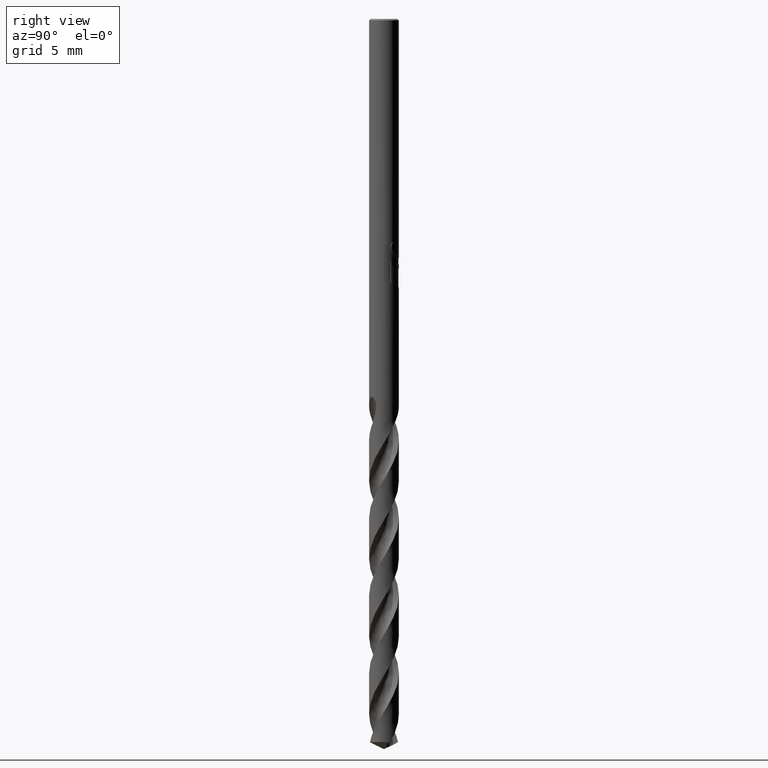
[diagram: clean part render]
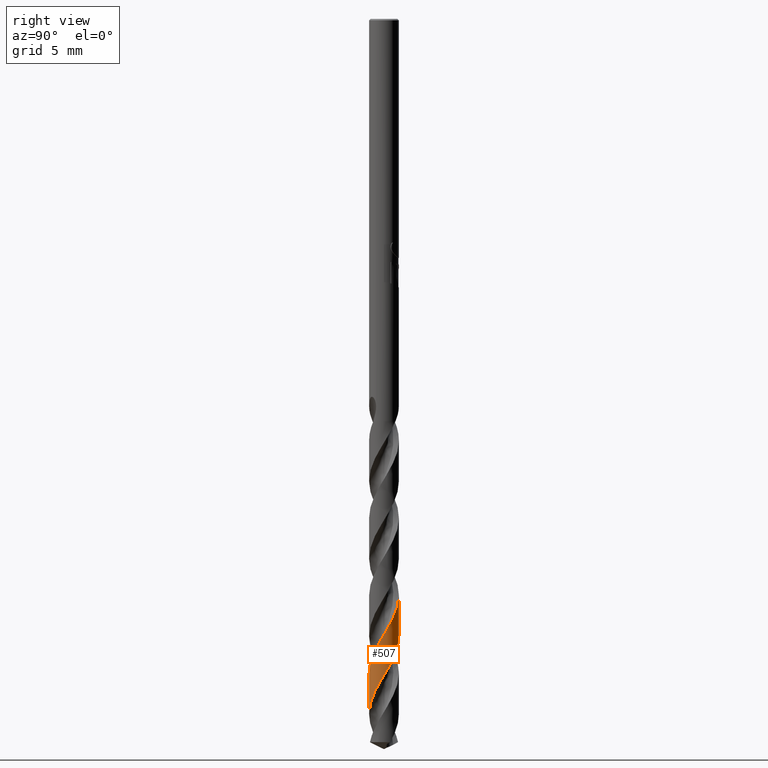
[diagram: same view with one face highlighted and labeled with its STEP entity id]
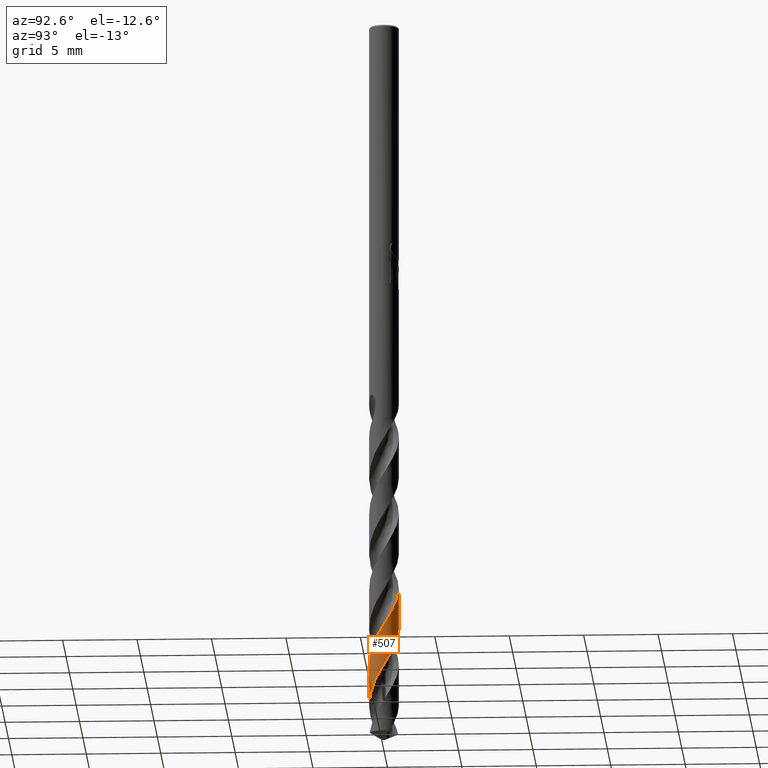
[diagram: same view with one face highlighted and labeled with its STEP entity id]
A machine part, right view. The second image highlights one B-rep face of the part: STEP entity #507.
A second angle (auxiliary view) of the same face is appended — the face is thin or edge-on in the first view.
In plain terms, the highlighted conical surface has half-angle 0 deg.
Its self-contained STEP definition (entity closure, byte-faithful):
#295=EDGE_CURVE('',#713,#465,#826,.T.);
#363=VERTEX_POINT('',#898);
#465=VERTEX_POINT('',#1011);
#471=VERTEX_POINT('',#1017);
#489=EDGE_CURVE('',#363,#465,#1036,.T.);
#507=ADVANCED_FACE('',(#1055),#1056,.T.);
#553=EDGE_CURVE('',#363,#471,#1105,.T.);
#643=EDGE_CURVE('',#713,#471,#1206,.T.);
#713=VERTEX_POINT('',#1283);
#826=B_SPLINE_CURVE_WITH_KNOTS('',3,(#1416,#1417,#1418,#1419,#1420,#1421,#1422,#1423,#1424,#1425,#1426,#1427,#1428,#1429,#1430,#1431,#1432,#1433,#1434,#1435,#1436,#1437,#1438,#1439,#1440,#1441,#1442,#1443,#1444,#1445,#1446,#1447,#1448,#1449,#1450,#1451,#1452,#1453,#1454,#1455,#1456,#1457,#1458,#1459,#1460,#1461,#1462,#1463,#1464,#1465,#1466,#1467,#1468,#1469,#1470,#1471,#1472,#1473,#1474,#1475,#1476,#1477,#1478,#1479,#1480,#1481,#1482,#1483,#1484,#1485,#1486,#1487,#1488,#1489,#1490,#1491,#1492,#1493,#1494,#1495,#1496,#1497,#1498,#1499,#1500,#1501,#1502,#1503,#1504,#1505,#1506,#1507,#1508,#1509,#1510,#1511,#1512,#1513,#1514,#1515,#1516,#1517,#1518,#1519,#1520,#1521,#1522,#1523,#1524,#1525,#1526,#1527,#1528,#1529,#1530,#1531,#1532,#1533,#1534,#1535,#1536,#1537,#1538,#1539,#1540,#1541,#1542,#1543,#1544,#1545,#1546,#1547,#1548,#1549,#1550,#1551,#1552,#1553,#1554,#1555,#1556,#1557,#1558,#1559,#1560,#1561,#1562,#1563,#1564,#1565,#1566,#1567,#1568,#1569,#1570,#1571),.UNSPECIFIED.,.F.,.F.,(4,2,2,2,2,2,2,2,2,2,2,2,2,2,2,2,2,2,2,2,2,2,2,2,2,2,2,2,2,2,2,2,2,2,2,2,2,2,2,2,2,2,2,2,2,2,2,2,2,2,2,2,2,2,2,2,2,2,2,2,2,2,2,2,2,2,2,2,2,2,2,2,2,2,2,2,2,4),(0.0,0.361337162358657,0.976261301621394,1.1645096475095,1.54466752896637,1.72683408805713,1.94261804372668,2.59464719311884,2.77800775885232,3.47848981626131,3.51889130918199,4.09321758788143,4.65649379795395,5.02119557355428,5.21316606392444,5.90264294125696,5.98616322421433,6.59712063751156,6.98105238734339,7.36536256074681,7.90099211863067,8.26598522135788,8.46778794251694,9.14374290249411,9.31837405770769,9.69555886869134,9.87951475530008,10.0951139882441,10.7567282586366,10.9417833560269,11.6539840578492,11.694043364667,12.2812229967223,12.8098363752709,13.1756980627008,13.3809288936328,14.0550600290681,14.232584705448,14.6065292866452,14.7912206606843,15.2284485195944,15.5930271560503,16.0537777552777,16.4185911929046,16.8038263729443,17.1896424429348,17.7217319258021,18.0880073056388,18.2924416436777,18.9683605631994,19.145295027987,19.5207611774961,19.7055696072614,20.1399856433091,20.5047983603629,20.9671628580473,21.3322117437013,21.7177093934577,22.1039861761332,22.641968007781,23.0088669988028,23.1999366720272,23.8193502846993,24.5415216084175,24.6657885651853,24.7300132143325,24.8717420236343,24.9503218814963,25.0588069124113,25.1229035095798,25.2113482762209,25.2584899909506,25.2883743723789,25.3162244973386,25.3531629405279,25.4344274627189,25.5458477865428,25.7616026485399),.UNSPECIFIED.);
#898=CARTESIAN_POINT('',(-5.19086669309657E-014,0.999954290792755,-38.6908122819593));
#1011=CARTESIAN_POINT('',(-1.1791142652487E-013,0.999967028578084,-41.4337277855305));
#1017=CARTESIAN_POINT('',(-9.14096433639484E-013,-0.9999784624389,-43.8958601966644));
#1036=LINE('',#3259,#3260);
#1055=FACE_OUTER_BOUND('',#3461,.T.);
#1056=CONICAL_SURFACE('',#3462,0.99995,4.64388542437503E-006);
#1105=B_SPLINE_CURVE_WITH_KNOTS('',3,(#3895,#3896,#3897,#3898,#3899,#3900,#3901,#3902,#3903,#3904,#3905,#3906,#3907,#3908,#3909,#3910,#3911,#3912,#3913,#3914,#3915,#3916,#3917,#3918,#3919,#3920,#3921,#3922,#3923,#3924,#3925,#3926,#3927,#3928,#3929,#3930,#3931,#3932,#3933,#3934,#3935,#3936,#3937,#3938,#3939,#3940,#3941,#3942,#3943,#3944,#3945,#3946,#3947,#3948,#3949,#3950,#3951,#3952,#3953,#3954,#3955,#3956,#3957,#3958,#3959,#3960,#3961,#3962,#3963,#3964,#3965,#3966,#3967,#3968,#3969,#3970,#3971,#3972,#3973,#3974,#3975,#3976,#3977,#3978,#3979,#3980,#3981,#3982,#3983,#3984,#3985,#3986,#3987,#3988,#3989,#3990,#3991,#3992,#3993,#3994,#3995,#3996,#3997,#3998,#3999,#4000,#4001,#4002,#4003,#4004,#4005,#4006,#4007,#4008,#4009,#4010,#4011,#4012,#4013,#4014,#4015,#4016,#4017,#4018,#4019,#4020,#4021,#4022,#4023,#4024,#4025,#4026,#4027,#4028,#4029,#4030,#4031,#4032,#4033,#4034,#4035,#4036,#4037,#4038,#4039,#4040,#4041,#4042,#4043,#4044,#4045,#4046,#4047,#4048,#4049,#4050,#4051,#4052,#4053,#4054,#4055,#4056,#4057,#4058,#4059,#4060,#4061,#4062,#4063,#4064,#4065,#4066,#4067,#4068,#4069,#4070,#4071,#4072,#4073,#4074,#4075,#4076),.UNSPECIFIED.,.F.,.F.,(4,2,2,2,2,2,2,2,2,2,2,2,2,2,2,2,2,2,2,2,2,2,2,2,2,2,2,2,2,2,2,2,2,2,2,2,2,2,2,2,2,2,2,2,2,2,2,2,2,2,2,2,2,2,2,2,2,2,2,2,2,2,2,2,2,2,2,2,2,2,2,2,2,2,2,2,2,2,2,2,2,2,2,2,2,2,2,2,2,2,4),(0.0,0.0713269601822127,0.0905710913789112,0.0994977567022842,0.105323863480744,0.10992141985153,0.113515126624189,0.116301397821268,0.118447032378656,0.120090198449797,0.121342985911201,0.122294792237779,0.123015947872496,0.12356118717431,0.248367748423359,0.27722928704317,0.292909812271049,0.306007461511428,0.321452030510873,0.349238094609262,0.383452344483724,0.427609210569007,0.570896598186937,0.636245978587268,0.684173771716098,0.735697710154707,0.789259494164526,0.811316800939864,0.984961028716066,1.13279175476137,1.28159717145805,1.68902679389984,2.31796160691511,2.41841238240108,2.79799332536576,2.9763470545205,3.2820909948577,3.76082652555422,4.06333959082316,4.51107960277442,4.85806224113688,5.34036504762714,5.62992890547369,6.13535030870713,6.41350692303129,6.91766351614137,7.19755605763748,7.70171880281721,7.9814140141979,8.48556390813268,8.76510134448463,9.26918137741888,9.54864164010171,10.0526352035573,10.3320415988141,10.8359452820761,11.1153003258685,11.6191075292949,11.898417503104,12.4021200909869,12.6813956541399,13.1850006087263,13.4642234104549,13.9676549379776,14.2469347398654,14.7502452424129,15.029523823625,15.5328655679991,15.8119216956194,16.3151739789274,16.5941809266085,17.0973485749243,17.3762987537729,17.8793746170397,18.1582773081044,18.6612626837962,18.9401068149223,19.4429466890467,19.7218247891687,20.2247395463734,20.50331248198,21.0054117101805,21.2848543733916,21.788720857051,22.0662831426163,22.566334277962,22.8452053675709,23.3462650317881,23.6403257376772,24.0780180768206,24.5261449386775),.UNSPECIFIED.);
#1206=LINE('',#6519,#6520);
#1283=CARTESIAN_POINT('',(-1.26615241493044E-013,-0.99999119822854,-46.6383459545789));
#1416=CARTESIAN_POINT('',(-0.909974226507982,-0.414664812940762,-48.533692341845));
#1417=CARTESIAN_POINT('',(-0.884089494360212,-0.471467223037623,-48.4306843882466));
#1418=CARTESIAN_POINT('',(-0.853053246550379,-0.5254623628058,-48.3268818714906));
#1419=CARTESIAN_POINT('',(-0.756972308534248,-0.661838188784405,-48.0490514679632));
#1420=CARTESIAN_POINT('',(-0.683280620848956,-0.737696812678099,-47.8775501043395));
#1421=CARTESIAN_POINT('',(-0.573214396989906,-0.820033516434332,-47.6493926017337));
#1422=CARTESIAN_POINT('',(-0.546546819828016,-0.838042470181231,-47.5957418752028));
#1423=CARTESIAN_POINT('',(-0.463421864928407,-0.888515803250211,-47.4342683069033));
#1424=CARTESIAN_POINT('',(-0.404571039337679,-0.916827937610988,-47.3270545420463));
#1425=CARTESIAN_POINT('',(-0.313866438639934,-0.949975737600897,-47.1675850046423));
#1426=CARTESIAN_POINT('',(-0.284035193109547,-0.95931443188844,-47.1159879301751));
#1427=CARTESIAN_POINT('',(-0.218113610382269,-0.976615566688474,-47.003018920271));
#1428=CARTESIAN_POINT('',(-0.181961647464725,-0.983985421889499,-46.9415125625582));
#1429=CARTESIAN_POINT('',(-0.0356541784820713,-1.00551352499264,-46.6955355879634));
#1430=CARTESIAN_POINT('',(0.0761688677630122,-1.00326049694875,-46.5146005183879));
#1431=CARTESIAN_POINT('',(0.216094545636904,-0.976861825164926,-46.2781262547534));
#1432=CARTESIAN_POINT('',(0.246452994269482,-0.969646611257163,-46.2260504876048));
#1433=CARTESIAN_POINT('',(0.391102968784261,-0.928032876684451,-45.9759093132332));
#1434=CARTESIAN_POINT('',(0.498726596206732,-0.874871702733071,-45.782369608925));
#1435=CARTESIAN_POINT('',(0.59991691746471,-0.800074544694021,-45.5727158967988));
#1436=CARTESIAN_POINT('',(0.605380910974261,-0.795948122664054,-45.561291935907));
#1437=CARTESIAN_POINT('',(0.688031218673725,-0.732185311150112,-45.3873430473485));
#1438=CARTESIAN_POINT('',(0.756271528086975,-0.661531242472111,-45.2274402738185));
#1439=CARTESIAN_POINT('',(0.869197679787193,-0.503683165274066,-44.9064543041072));
#1440=CARTESIAN_POINT('',(0.913550659225301,-0.417900734806901,-44.7467120030092));
#1441=CARTESIAN_POINT('',(0.965366831852584,-0.268155554414006,-44.4849566820731));
#1442=CARTESIAN_POINT('',(0.98015337382443,-0.207633225506715,-44.3827217476146));
#1443=CARTESIAN_POINT('',(0.994005104693142,-0.113933199382353,-44.2255084776699));
#1444=CARTESIAN_POINT('',(0.997187222324139,-0.0814830941769232,-44.1711011143368));
#1445=CARTESIAN_POINT('',(1.00450869783816,0.0679956198552639,-43.922331657348));
#1446=CARTESIAN_POINT('',(0.989663446758689,0.184864599788884,-43.7322128759632));
#1447=CARTESIAN_POINT('',(0.950825079205069,0.309976442602454,-43.5141555187165));
#1448=CARTESIAN_POINT('',(0.946351803621298,0.323375515702617,-43.4905802861585));
#1449=CARTESIAN_POINT('',(0.906726658262533,0.434184508767475,-43.2946526884808));
#1450=CARTESIAN_POINT('',(0.856914599379851,0.52576262900332,-43.1254171697304));
#1451=CARTESIAN_POINT('',(0.754088863975616,0.659965038421645,-42.8453690712443));
#1452=CARTESIAN_POINT('',(0.709478321392534,0.707706429734855,-42.7366318765135));
#1453=CARTESIAN_POINT('',(0.611396373505677,0.793982840111235,-42.5203647891639));
#1454=CARTESIAN_POINT('',(0.558214828567696,0.832233506585758,-42.4129759803181));
#1455=CARTESIAN_POINT('',(0.422851393861861,0.910735043758517,-42.15410464317));
#1456=CARTESIAN_POINT('',(0.338182390424449,0.945457447484262,-42.0025562844681));
#1457=CARTESIAN_POINT('',(0.189697556549716,0.983775450329625,-41.7491842458098));
#1458=CARTESIAN_POINT('',(0.128290174179347,0.993638490471973,-41.6471408016226));
#1459=CARTESIAN_POINT('',(0.0322763138835504,1.00003329380327,-41.4875286309329));
#1460=CARTESIAN_POINT('',(-0.0019180229224435,1.00054777125513,-41.4304854922018));
#1461=CARTESIAN_POINT('',(-0.150313343095689,0.995195521305252,-41.1835823326537));
#1462=CARTESIAN_POINT('',(-0.262945065152687,0.971516328129952,-40.9976270627382));
#1463=CARTESIAN_POINT('',(-0.396562193569361,0.918442968847741,-40.7585776527126));
#1464=CARTESIAN_POINT('',(-0.423473680738477,0.906351276703757,-40.709350708003));
#1465=CARTESIAN_POINT('',(-0.506962346957572,0.864290634438687,-40.5540721296454));
#1466=CARTESIAN_POINT('',(-0.56124810241579,0.830085312730178,-40.4486997747847));
#1467=CARTESIAN_POINT('',(-0.636732074316689,0.771670119471134,-40.2910843131484));
#1468=CARTESIAN_POINT('',(-0.66053174482446,0.751395074572301,-40.2394798890162));
#1469=CARTESIAN_POINT('',(-0.710016520614799,0.705078765197815,-40.1271400833789));
#1470=CARTESIAN_POINT('',(-0.735262864017441,0.678700348834376,-40.0662783655073));
#1471=CARTESIAN_POINT('',(-0.831667175281278,0.566321151657197,-39.8200121808063));
#1472=CARTESIAN_POINT('',(-0.889648290230411,0.470017677512381,-39.6381805140247));
#1473=CARTESIAN_POINT('',(-0.941971470641278,0.337017442002326,-39.4007871669843));
#1474=CARTESIAN_POINT('',(-0.952019078489436,0.307488508347603,-39.3487297692421));
#1475=CARTESIAN_POINT('',(-0.994027348696815,0.162051149560672,-39.0971634203455));
#1476=CARTESIAN_POINT('',(-1.00623952565904,0.0417626257180703,-38.9022938855646));
#1477=CARTESIAN_POINT('',(-0.996409610182816,-0.0843912458509947,-38.6913778644815));
#1478=CARTESIAN_POINT('',(-0.995818685039087,-0.091101016543467,-38.6801415563199));
#1479=CARTESIAN_POINT('',(-0.985454535564884,-0.196516204404306,-38.5036725219247));
#1480=CARTESIAN_POINT('',(-0.961121027592901,-0.293371716782488,-38.3412224844282));
#1481=CARTESIAN_POINT('',(-0.888217753903201,-0.467982500777985,-38.0281511875116));
#1482=CARTESIAN_POINT('',(-0.84272991503922,-0.545674357346883,-37.8790091671778));
#1483=CARTESIAN_POINT('',(-0.749133377083764,-0.665248495975374,-37.6280934853218));
#1484=CARTESIAN_POINT('',(-0.706427317406581,-0.710418671298318,-37.5261038109));
#1485=CARTESIAN_POINT('',(-0.633784810857772,-0.774222386647588,-37.3657573314648));
#1486=CARTESIAN_POINT('',(-0.606567894031954,-0.795719154172411,-37.3079132798567));
#1487=CARTESIAN_POINT('',(-0.485591775004463,-0.881486393881533,-37.0613155304993));
#1488=CARTESIAN_POINT('',(-0.382387366515763,-0.930902721754408,-36.8763840750045));
#1489=CARTESIAN_POINT('',(-0.244310172216518,-0.9701016474479,-36.6377889812214));
#1490=CARTESIAN_POINT('',(-0.215214947164651,-0.976969530714055,-36.5879017481304));
#1491=CARTESIAN_POINT('',(-0.123751805471204,-0.994262082844514,-36.4332690289604));
#1492=CARTESIAN_POINT('',(-0.0606429642574732,-1.00011310827695,-36.3291535039778));
#1493=CARTESIAN_POINT('',(0.0340415446166339,-0.999853141660648,-36.1728021526473));
#1494=CARTESIAN_POINT('',(0.0652842376031171,-0.998297367351126,-36.1211778476856));
#1495=CARTESIAN_POINT('',(0.169937174158305,-0.988164138194265,-35.9469524643148));
#1496=CARTESIAN_POINT('',(0.242546605448699,-0.972903998553887,-35.823714567234));
#1497=CARTESIAN_POINT('',(0.371588800137908,-0.930386021946614,-35.5990662773437));
#1498=CARTESIAN_POINT('',(0.428310246497237,-0.905668578097961,-35.4975645730591));
#1499=CARTESIAN_POINT('',(0.55065100378552,-0.838295625638583,-35.2662478670722));
#1500=CARTESIAN_POINT('',(0.614338436190825,-0.792820929861863,-35.1363323812743));
#1501=CARTESIAN_POINT('',(0.717955600889284,-0.698740368882163,-34.9049531974434));
#1502=CARTESIAN_POINT('',(0.75975338006966,-0.653038958719335,-34.8033522467627));
#1503=CARTESIAN_POINT('',(0.836412029904582,-0.551848564696165,-34.5930436194253));
#1504=CARTESIAN_POINT('',(0.870584687572577,-0.496195101830584,-34.4843591660356));
#1505=CARTESIAN_POINT('',(0.927728418691984,-0.37875863093779,-34.268140753157));
#1506=CARTESIAN_POINT('',(0.950494552939616,-0.317332017733465,-34.1607474930513));
#1507=CARTESIAN_POINT('',(0.990014974945331,-0.166918154817188,-33.9034385860591));
#1508=CARTESIAN_POINT('',(1.00103465476834,-0.0770492277572054,-33.7534595355959));
#1509=CARTESIAN_POINT('',(0.999023870270235,0.0753053084234947,-33.5016879901632));
#1510=CARTESIAN_POINT('',(0.992417957471425,0.137126141328575,-33.3996779674742));
#1511=CARTESIAN_POINT('',(0.973318748104039,0.231741361040497,-33.2395847311975));
#1512=CARTESIAN_POINT('',(0.964742297743481,0.265172015035181,-33.1820187308686));
#1513=CARTESIAN_POINT('',(0.920527697644175,0.406760258847377,-32.9353595996321));
#1514=CARTESIAN_POINT('',(0.868293781204939,0.508794021218994,-32.7501144051168));
#1515=CARTESIAN_POINT('',(0.782149416592366,0.623683409304344,-32.5113862250798));
#1516=CARTESIAN_POINT('',(0.763246052449815,0.646681400824103,-32.461707802927));
#1517=CARTESIAN_POINT('',(0.70092035649947,0.71594038065581,-32.3069273841614));
#1518=CARTESIAN_POINT('',(0.654102350777021,0.758974455471211,-32.2024696233741));
#1519=CARTESIAN_POINT('',(0.578435211981594,0.816234811967242,-32.0457728596581));
#1520=CARTESIAN_POINT('',(0.552635336798773,0.833915582059347,-31.9941527690303));
#1521=CARTESIAN_POINT('',(0.463679783375718,0.888949422608264,-31.820804739972));
#1522=CARTESIAN_POINT('',(0.397166733818098,0.920604751240188,-31.698445101458));
#1523=CARTESIAN_POINT('',(0.269307362059248,0.964951295208073,-31.4746715179479));
#1524=CARTESIAN_POINT('',(0.209229575785357,0.979729280707154,-31.3731736292278));
#1525=CARTESIAN_POINT('',(0.0708949913308721,1.00046276837989,-31.1414988366967));
#1526=CARTESIAN_POINT('',(-0.00754242744331818,1.00295361086464,-31.0112165517706));
#1527=CARTESIAN_POINT('',(-0.14720133191554,0.990954840706106,-30.7794806896672));
#1528=CARTESIAN_POINT('',(-0.20814755439098,0.97995968837337,-30.6778863019821));
#1529=CARTESIAN_POINT('',(-0.330460635416594,0.945980585593098,-30.4675842358357));
#1530=CARTESIAN_POINT('',(-0.391378056850915,0.922448604493877,-30.3589052403046));
#1531=CARTESIAN_POINT('',(-0.508048233223562,0.863707369814777,-30.142633912689));
#1532=CARTESIAN_POINT('',(-0.563421477239389,0.828650147519799,-30.0351809566029));
#1533=CARTESIAN_POINT('',(-0.686801009618704,0.732410821980903,-29.7762694995365));
#1534=CARTESIAN_POINT('',(-0.750634189104934,0.666850911084699,-29.6247674977484));
#1535=CARTESIAN_POINT('',(-0.841675072395474,0.543390879145454,-29.371364589176));
#1536=CARTESIAN_POINT('',(-0.873774660461731,0.490082137951003,-29.2692702028471));
#1537=CARTESIAN_POINT('',(-0.914709351903545,0.405176838123625,-29.1128305053925));
#1538=CARTESIAN_POINT('',(-0.92727307770855,0.37552104821578,-29.0590654140442));
#1539=CARTESIAN_POINT('',(-0.974345452001558,0.2476220364794,-28.8321791835525));
#1540=CARTESIAN_POINT('',(-0.994892591497707,0.144703818072419,-28.6617680707106));
#1541=CARTESIAN_POINT('',(-1.00400058305705,-0.0816020384524423,-28.2871781979354));
#1542=CARTESIAN_POINT('',(-0.986590602964498,-0.20261445153681,-28.0848935015039));
#1543=CARTESIAN_POINT('',(-0.941654851860513,-0.336936878480087,-27.8513713241063));
#1544=CARTESIAN_POINT('',(-0.934412372263023,-0.356542112220509,-27.8171488407607));
#1545=CARTESIAN_POINT('',(-0.922431805849097,-0.386062844726671,-27.7653395678861));
#1546=CARTESIAN_POINT('',(-0.918174927268412,-0.39608196081232,-27.7477060740928));
#1547=CARTESIAN_POINT('',(-0.903959017308353,-0.42807105252933,-27.6912176360702));
#1548=CARTESIAN_POINT('',(-0.893327313639787,-0.449869652386093,-27.6525117675703));
#1549=CARTESIAN_POINT('',(-0.87521288197172,-0.48373082391951,-27.5894653668133));
#1550=CARTESIAN_POINT('',(-0.868567283795685,-0.495556641140063,-27.566935292918));
#1551=CARTESIAN_POINT('',(-0.852357893855553,-0.523100679016867,-27.5130161621714));
#1552=CARTESIAN_POINT('',(-0.842686168340275,-0.538519508640531,-27.4816513908905));
#1553=CARTESIAN_POINT('',(-0.826966870860781,-0.562175313037332,-27.4312774978888));
#1554=CARTESIAN_POINT('',(-0.821070571816779,-0.570747095249993,-27.4125115282114));
#1555=CARTESIAN_POINT('',(-0.806927101087802,-0.590654342603964,-27.367605201935));
#1556=CARTESIAN_POINT('',(-0.801911747605736,-0.597365529389791,-27.351321799304));
#1557=CARTESIAN_POINT('',(-0.792410103775587,-0.609851614143045,-27.3223439560268));
#1558=CARTESIAN_POINT('',(-0.789015447294891,-0.614238901624279,-27.3123266785751));
#1559=CARTESIAN_POINT('',(-0.783305975056827,-0.621487993163979,-27.2960393098835));
#1560=CARTESIAN_POINT('',(-0.781052073801483,-0.624318622146491,-27.2897436183616));
#1561=CARTESIAN_POINT('',(-0.776619038716571,-0.629823054589252,-27.277622500174));
#1562=CARTESIAN_POINT('',(-0.774446026363646,-0.632493461976556,-27.2717963348988));
#1563=CARTESIAN_POINT('',(-0.769306979051808,-0.638741304579349,-27.2582881492314));
#1564=CARTESIAN_POINT('',(-0.766314999387595,-0.642328619181251,-27.2506247109929));
#1565=CARTESIAN_POINT('',(-0.756531986046686,-0.653888262933989,-27.2262144259445));
#1566=CARTESIAN_POINT('',(-0.749502796111536,-0.661942765736333,-27.209633193453));
#1567=CARTESIAN_POINT('',(-0.732044502033959,-0.681277741092509,-27.1707254359339));
#1568=CARTESIAN_POINT('',(-0.721359240832737,-0.692604976345974,-27.1486338741101));
#1569=CARTESIAN_POINT('',(-0.688058046818913,-0.726188438823162,-27.0847372025221));
#1570=CARTESIAN_POINT('',(-0.663882453575266,-0.748505435626131,-27.0443129684901));
#1571=CARTESIAN_POINT('',(-0.637187381168949,-0.770579196262958,-27.005));
#3259=CARTESIAN_POINT('',(-1.22502836488539E-016,0.99995,-37.7668461709225));
#3260=VECTOR('',#8483,1.0);
#3461=EDGE_LOOP('',(#8503,#8504,#8505,#8506));
#3462=AXIS2_PLACEMENT_3D('',#8507,#8508,#8509);
#3895=CARTESIAN_POINT('',(-0.695006638995518,0.718864262699409,-27.005));
#3896=CARTESIAN_POINT('',(-0.686613854031782,0.726978642211784,-27.0257123079351));
#3897=CARTESIAN_POINT('',(-0.678037696746207,0.73498708125927,-27.0464267940001));
#3898=CARTESIAN_POINT('',(-0.666847238347545,0.745067572051551,-27.0727072524688));
#3899=CARTESIAN_POINT('',(-0.664454498966895,0.747202313371971,-27.0782851909026));
#3900=CARTESIAN_POINT('',(-0.660926713036044,0.750319210699369,-27.0864464123365));
#3901=CARTESIAN_POINT('',(-0.659805405556728,0.751305463424192,-27.0890313064955));
#3902=CARTESIAN_POINT('',(-0.657946222952313,0.752933328087588,-27.0933018718946));
#3903=CARTESIAN_POINT('',(-0.657210507280632,0.753575607785352,-27.0949878853718));
#3904=CARTESIAN_POINT('',(-0.655891432775723,0.754723753106848,-27.0980036738813));
#3905=CARTESIAN_POINT('',(-0.655308688865532,0.755229800294122,-27.0993335344784));
#3906=CARTESIAN_POINT('',(-0.654268710072788,0.756130791558494,-27.1017024291736));
#3907=CARTESIAN_POINT('',(-0.653811866534987,0.75652585711372,-27.1027415324003));
#3908=CARTESIAN_POINT('',(-0.652999769059385,0.757226850017007,-27.1045859836095));
#3909=CARTESIAN_POINT('',(-0.652644758463358,0.757532855954999,-27.1053913818236));
#3910=CARTESIAN_POINT('',(-0.652015731354584,0.758074282923513,-27.1068168183608));
#3911=CARTESIAN_POINT('',(-0.65174186315821,0.758309753390441,-27.1074368908277));
#3912=CARTESIAN_POINT('',(-0.651257887672297,0.758725416876825,-27.1085317188436));
#3913=CARTESIAN_POINT('',(-0.651047869359346,0.758905640217005,-27.1090064963758));
#3914=CARTESIAN_POINT('',(-0.650677509332255,0.759223190825042,-27.1098431914496));
#3915=CARTESIAN_POINT('',(-0.650517220217732,0.759360536392561,-27.1102051228111));
#3916=CARTESIAN_POINT('',(-0.650235024247687,0.759602184266276,-27.1108419944176));
#3917=CARTESIAN_POINT('',(-0.650113148210572,0.759706497399814,-27.1111169429942));
#3918=CARTESIAN_POINT('',(-0.64989885703623,0.759889818864666,-27.1116001902578));
#3919=CARTESIAN_POINT('',(-0.649806459785677,0.759968833540234,-27.1118084939109));
#3920=CARTESIAN_POINT('',(-0.649644162357227,0.760107572986221,-27.11217427575));
#3921=CARTESIAN_POINT('',(-0.649574272371735,0.760167301542056,-27.1123317571237));
#3922=CARTESIAN_POINT('',(-0.633503256422959,0.77389788837477,-27.1485361515204));
#3923=CARTESIAN_POINT('',(-0.617024903941267,0.787115942827001,-27.1837980318149));
#3924=CARTESIAN_POINT('',(-0.595676487188759,0.80311689922466,-27.2274955363377));
#3925=CARTESIAN_POINT('',(-0.591635165493853,0.806098882370976,-27.2356871346724));
#3926=CARTESIAN_POINT('',(-0.585344393203778,0.810667471059467,-27.2483262730512));
#3927=CARTESIAN_POINT('',(-0.583120784441931,0.812268449955475,-27.2527726251656));
#3928=CARTESIAN_POINT('',(-0.579022586007346,0.815193553321759,-27.2609311448822));
#3929=CARTESIAN_POINT('',(-0.577151393556642,0.816519445586498,-27.2646425020783));
#3930=CARTESIAN_POINT('',(-0.573060264975545,0.819397218155224,-27.2727289819606));
#3931=CARTESIAN_POINT('',(-0.5708386441858,0.820946510525634,-27.2771024429158));
#3932=CARTESIAN_POINT('',(-0.564597650484595,0.825261153567193,-27.2893431280833));
#3933=CARTESIAN_POINT('',(-0.560563521822709,0.828006735196946,-27.297203201124));
#3934=CARTESIAN_POINT('',(-0.551511047891155,0.834071131151891,-27.314747023374));
#3935=CARTESIAN_POINT('',(-0.546487645154141,0.837371108790674,-27.3244189366527));
#3936=CARTESIAN_POINT('',(-0.534917757425862,0.844823263703082,-27.3465969807494));
#3937=CARTESIAN_POINT('',(-0.528325200616242,0.848962817214103,-27.3591706870981));
#3938=CARTESIAN_POINT('',(-0.499800201256799,0.866404551117569,-27.4135548726197));
#3939=CARTESIAN_POINT('',(-0.477637680875328,0.878806294690894,-27.4555530386179));
#3940=CARTESIAN_POINT('',(-0.444994252734904,0.895498072902467,-27.5165214679886));
#3941=CARTESIAN_POINT('',(-0.434690015954206,0.900544799390751,-27.5356434468483));
#3942=CARTESIAN_POINT('',(-0.416700484277837,0.908975608126661,-27.5687742285563));
#3943=CARTESIAN_POINT('',(-0.409043845308673,0.912446836061663,-27.5827974222139));
#3944=CARTESIAN_POINT('',(-0.393066478869706,0.919448809277488,-27.6118848178016));
#3945=CARTESIAN_POINT('',(-0.384734730736792,0.922966367987247,-27.6269559961555));
#3946=CARTESIAN_POINT('',(-0.367634766665082,0.929913597878663,-27.6576776567949));
#3947=CARTESIAN_POINT('',(-0.358859064109757,0.933335619538134,-27.6733333368648));
#3948=CARTESIAN_POINT('',(-0.346386793504285,0.93799666379848,-27.6954213194832));
#3949=CARTESIAN_POINT('',(-0.342734865337507,0.939337257482713,-27.7018703829055));
#3950=CARTESIAN_POINT('',(-0.310254540494838,0.951045565720579,-27.7590952927524));
#3951=CARTESIAN_POINT('',(-0.280944835177227,0.960114403132948,-27.8097579326653));
#3952=CARTESIAN_POINT('',(-0.225942337212896,0.974392789912304,-27.9036928982086));
#3953=CARTESIAN_POINT('',(-0.200418897376628,0.979960254320273,-27.9468437266985));
#3954=CARTESIAN_POINT('',(-0.148859418158264,0.989110976354032,-28.0335647819435));
#3955=CARTESIAN_POINT('',(-0.122845910012749,0.992676501332334,-28.0771137559953));
#3956=CARTESIAN_POINT('',(-0.025277468593334,1.00216182906789,-28.239761714788));
#3957=CARTESIAN_POINT('',(0.0467565676348758,1.0013940585666,-28.3583404285772));
#3958=CARTESIAN_POINT('',(0.228260451493086,0.979804563960644,-28.6612894139944));
#3959=CARTESIAN_POINT('',(0.335513449152905,0.948456715880845,-28.8438127873961));
#3960=CARTESIAN_POINT('',(0.451401025858256,0.892395964307443,-29.0569619557853));
#3961=CARTESIAN_POINT('',(0.467144422686834,0.884256360847424,-29.0863054217053));
#3962=CARTESIAN_POINT('',(0.541287117757175,0.843392129516379,-29.2266513983501));
#3963=CARTESIAN_POINT('',(0.59653921516019,0.805262508792835,-29.3375815681823));
#3964=CARTESIAN_POINT('',(0.67154515399835,0.741512329127348,-29.5007124213954));
#3965=CARTESIAN_POINT('',(0.694556893061744,0.720004402429022,-29.5528137632092));
#3966=CARTESIAN_POINT('',(0.754182201227906,0.65874813688961,-29.6943102287547));
#3967=CARTESIAN_POINT('',(0.788619464103442,0.617100797053416,-29.7834170603625));
#3968=CARTESIAN_POINT('',(0.86789853155881,0.503696618022356,-30.0128452948711));
#3969=CARTESIAN_POINT('',(0.90735182418391,0.428591144917375,-30.1524191596304));
#3970=CARTESIAN_POINT('',(0.955561276220552,0.299313216867707,-30.3808168221131));
#3971=CARTESIAN_POINT('',(0.97017398329298,0.247875019902407,-30.4690203461957));
#3972=CARTESIAN_POINT('',(0.996055150623017,0.118092455686123,-30.6884877023634));
#3973=CARTESIAN_POINT('',(1.00228071851717,0.0390260228530755,-30.8191286875493));
#3974=CARTESIAN_POINT('',(0.996667345390243,-0.101232004497014,-31.0515132288838));
#3975=CARTESIAN_POINT('',(0.988594039720699,-0.162073337864718,-31.1526169367596));
#3976=CARTESIAN_POINT('',(0.956147234531963,-0.304735115198806,-31.3952455712336));
#3977=CARTESIAN_POINT('',(0.926747515413741,-0.38502233268714,-31.5358818549713));
#3978=CARTESIAN_POINT('',(0.863923897580396,-0.5060602624125,-31.7616094598025));
#3979=CARTESIAN_POINT('',(0.83692327586155,-0.549559187116811,-31.8460800609634));
#3980=CARTESIAN_POINT('',(0.754040623439391,-0.662739919097622,-32.0787091014419));
#3981=CARTESIAN_POINT('',(0.691913757414813,-0.727379542658239,-32.2260692866114));
#3982=CARTESIAN_POINT('',(0.583494218308576,-0.8135116962665,-32.4552611679646));
#3983=CARTESIAN_POINT('',(0.542833474827786,-0.841185680387797,-32.5364354424067));
#3984=CARTESIAN_POINT('',(0.423288322085899,-0.910273610020889,-32.7653974284002));
#3985=CARTESIAN_POINT('',(0.340587989561126,-0.944348890140831,-32.9124209535645));
#3986=CARTESIAN_POINT('',(0.206571946852226,-0.979608249152059,-33.1417928444736));
#3987=CARTESIAN_POINT('',(0.1578973532299,-0.988618938178325,-33.223485969756));
#3988=CARTESIAN_POINT('',(0.0203130685275561,-1.00367718997718,-33.4529998500918));
#3989=CARTESIAN_POINT('',(-0.069123705946982,-1.00151206545182,-33.6000516316308));
#3990=CARTESIAN_POINT('',(-0.205970533099092,-0.979736834786771,-33.8294094769448));
#3991=CARTESIAN_POINT('',(-0.254120980649565,-0.96836219866502,-33.9110601726113));
#3992=CARTESIAN_POINT('',(-0.386087317183181,-0.926674701030284,-34.1405544001389));
#3993=CARTESIAN_POINT('',(-0.46707204896434,-0.888626537169001,-34.2876289177715));
#3994=CARTESIAN_POINT('',(-0.583517198975997,-0.813523408142605,-34.5169785813153));
#3995=CARTESIAN_POINT('',(-0.622979269003973,-0.783711801437924,-34.5985982365559));
#3996=CARTESIAN_POINT('',(-0.726927339033371,-0.692367809716888,-34.8280675483015));
#3997=CARTESIAN_POINT('',(-0.785701350250282,-0.624895145657758,-34.9751483432384));
#3998=CARTESIAN_POINT('',(-0.861982996062221,-0.50921892623216,-35.2044966310197));
#3999=CARTESIAN_POINT('',(-0.886074417789543,-0.466031575175788,-35.2861085992931));
#4000=CARTESIAN_POINT('',(-0.944372330359112,-0.34053495382466,-35.5155716408082));
#4001=CARTESIAN_POINT('',(-0.970955835844044,-0.255092016059332,-35.6626538950098));
#4002=CARTESIAN_POINT('',(-0.994126654154183,-0.118478472673569,-35.8920027164438));
#4003=CARTESIAN_POINT('',(-0.998761692100898,-0.0692440524033392,-35.9736137508182));
#4004=CARTESIAN_POINT('',(-1.00151590508305,0.0691053978862562,-36.203076311271));
#4005=CARTESIAN_POINT('',(-0.991395482671085,0.15801480824875,-36.350159020989));
#4006=CARTESIAN_POINT('',(-0.957521597914191,0.292376024301946,-36.5795080991902));
#4007=CARTESIAN_POINT('',(-0.941913570917056,0.339300572394846,-36.6611189281732));
#4008=CARTESIAN_POINT('',(-0.888656389929841,0.467017973306362,-36.8905798111083));
#4009=CARTESIAN_POINT('',(-0.843550013248184,0.544300795576792,-37.0376610762833));
#4010=CARTESIAN_POINT('',(-0.758381058773203,0.653602344933123,-37.2670103392485));
#4011=CARTESIAN_POINT('',(-0.725178566242183,0.690252566249163,-37.3486227972586));
#4012=CARTESIAN_POINT('',(-0.624950637089419,0.785658136769754,-37.5780814957958));
#4013=CARTESIAN_POINT('',(-0.552516519817,0.838195387454054,-37.7251590020122));
#4014=CARTESIAN_POINT('',(-0.430508888444276,0.90388419695537,-37.9545092475207));
#4015=CARTESIAN_POINT('',(-0.385345494047855,0.924039012001074,-38.0361264638811));
#4016=CARTESIAN_POINT('',(-0.255157655844488,0.970939146343069,-38.265588209562));
#4017=CARTESIAN_POINT('',(-0.167690783082462,0.989814149954572,-38.4126639876157));
#4018=CARTESIAN_POINT('',(-0.0295558700881871,1.00073840682966,-38.6420119564545));
#4019=CARTESIAN_POINT('',(0.0198998690697507,1.00097432640431,-38.7236286084869));
#4020=CARTESIAN_POINT('',(0.157932336693111,0.991407825552779,-38.953065915942));
#4021=CARTESIAN_POINT('',(0.245571597742709,0.973422142567558,-39.1001182404186));
#4022=CARTESIAN_POINT('',(0.37639346957911,0.927732258506555,-39.3294740195926));
#4023=CARTESIAN_POINT('',(0.421764815670551,0.908002379457779,-39.4111220836511));
#4024=CARTESIAN_POINT('',(0.544236832153701,0.843589859322397,-39.6405825871848));
#4025=CARTESIAN_POINT('',(0.617182280419227,0.791800222945481,-39.7876266037244));
#4026=CARTESIAN_POINT('',(0.718483477672458,0.697243100815129,-40.0169884936216));
#4027=CARTESIAN_POINT('',(0.752055331548589,0.660888736206738,-40.0986510891476));
#4028=CARTESIAN_POINT('',(0.838180637386028,0.552540574937745,-40.3281622811322));
#4029=CARTESIAN_POINT('',(0.884062431339741,0.475715770056853,-40.4752417125066));
#4030=CARTESIAN_POINT('',(0.938629414738891,0.34834561519477,-40.7045892873225));
#4031=CARTESIAN_POINT('',(0.954683311756744,0.301569762391279,-40.7862019445599));
#4032=CARTESIAN_POINT('',(0.989809703052332,0.167723359525537,-41.0156633914597));
#4033=CARTESIAN_POINT('',(1.00082464955243,0.0789202812657107,-41.1627434267886));
#4034=CARTESIAN_POINT('',(0.999409480662851,-0.0596403197324958,-41.392092027641));
#4035=CARTESIAN_POINT('',(0.995242495107233,-0.108919036824273,-41.4737051079142));
#4036=CARTESIAN_POINT('',(0.973425260154585,-0.245569350841153,-41.7031689656407));
#4037=CARTESIAN_POINT('',(0.94770251111794,-0.331277849193895,-41.8502509539806));
#4038=CARTESIAN_POINT('',(0.890544000095423,-0.45750842932544,-42.0795997223334));
#4039=CARTESIAN_POINT('',(0.866863576165865,-0.500923969188698,-42.1612110035142));
#4040=CARTESIAN_POINT('',(0.791805696873076,-0.617180062634574,-42.3906729206834));
#4041=CARTESIAN_POINT('',(0.733711219186782,-0.685244012469436,-42.5377547902545));
#4042=CARTESIAN_POINT('',(0.630511307517989,-0.77771751539386,-42.7671043480794));
#4043=CARTESIAN_POINT('',(0.591336419958762,-0.807901593450749,-42.8487165394408));
#4044=CARTESIAN_POINT('',(0.475777229888476,-0.884030546188092,-43.0781796205093));
#4045=CARTESIAN_POINT('',(0.395171780247856,-0.922896125195423,-43.2252617226271));
#4046=CARTESIAN_POINT('',(0.263449122319662,-0.965914008149535,-43.4546092132695));
#4047=CARTESIAN_POINT('',(0.215431103814873,-0.97774201751661,-43.5362190724266));
#4048=CARTESIAN_POINT('',(0.0789975064251165,-1.00081872314403,-43.7656639856927));
#4049=CARTESIAN_POINT('',(-0.0104265654683827,-1.00388944121609,-43.9127305717579));
#4050=CARTESIAN_POINT('',(-0.148319140987015,-0.99015384090292,-44.1420871198441));
#4051=CARTESIAN_POINT('',(-0.197045456607547,-0.981616516475376,-44.2237217082995));
#4052=CARTESIAN_POINT('',(-0.331246370265284,-0.947716336496222,-44.4532403039755));
#4053=CARTESIAN_POINT('',(-0.414344819393176,-0.914457645335951,-44.6003547414983));
#4054=CARTESIAN_POINT('',(-0.534976077027423,-0.846289392017275,-44.8296854365943));
#4055=CARTESIAN_POINT('',(-0.576086326077092,-0.818855531645001,-44.911245820288));
#4056=CARTESIAN_POINT('',(-0.68509600670698,-0.733837478058461,-45.1404774208383));
#4057=CARTESIAN_POINT('',(-0.747656298562736,-0.670005972203482,-45.2873833268273));
#4058=CARTESIAN_POINT('',(-0.830633365542834,-0.55899542996756,-45.51677204383));
#4059=CARTESIAN_POINT('',(-0.857289403844894,-0.517182018344767,-45.5986005955202));
#4060=CARTESIAN_POINT('',(-0.922995480906173,-0.394991726786837,-45.8286483132629));
#4061=CARTESIAN_POINT('',(-0.95458178016213,-0.311025263405659,-45.9760912387799));
#4062=CARTESIAN_POINT('',(-0.985619152010819,-0.175945693331096,-46.2054889671713));
#4063=CARTESIAN_POINT('',(-0.993077872077579,-0.127252038653912,-46.2867862234075));
#4064=CARTESIAN_POINT('',(-1.00385583208184,0.0100771936505314,-46.5152028026483));
#4065=CARTESIAN_POINT('',(-0.999026281284858,0.0989892461827717,-46.6615649720703));
#4066=CARTESIAN_POINT('',(-0.973303925271835,0.23475903329126,-46.8902649494972));
#4067=CARTESIAN_POINT('',(-0.960507778149019,0.282580414384224,-46.9719482452767));
#4068=CARTESIAN_POINT('',(-0.915011923782287,0.413064520179509,-47.2010907410722));
#4069=CARTESIAN_POINT('',(-0.874727209586039,0.492690370830761,-47.3478015294827));
#4070=CARTESIAN_POINT('',(-0.794886777482435,0.608989317865997,-47.5813187037814));
#4071=CARTESIAN_POINT('',(-0.762055338181883,0.649599808604409,-47.6674894099527));
#4072=CARTESIAN_POINT('',(-0.672898426414489,0.743787269322076,-47.882494685375));
#4073=CARTESIAN_POINT('',(-0.613155353800429,0.793769903739721,-48.0107101482952));
#4074=CARTESIAN_POINT('',(-0.481661673228534,0.879957825106115,-48.2708583752379));
#4075=CARTESIAN_POINT('',(-0.410274532778558,0.915403347269541,-48.4019326118679));
#4076=CARTESIAN_POINT('',(-0.335565590940082,0.942016843892419,-48.533692341845));
#6519=CARTESIAN_POINT('',(1.22406188212398E-016,-0.99995,-37.7668461709225));
#6520=VECTOR('',#8690,1.0);
#8483=DIRECTION('',(-5.68693159709234E-022,4.64388542435833E-006,-0.999999999989217));
#8503=ORIENTED_EDGE('',*,*,#489,.F.);
#8504=ORIENTED_EDGE('',*,*,#553,.T.);
#8505=ORIENTED_EDGE('',*,*,#643,.F.);
#8506=ORIENTED_EDGE('',*,*,#295,.T.);
#8507=CARTESIAN_POINT('',(0.0,0.0,-37.7668461709225));
#8508=DIRECTION('',(0.0,-0.0,-1.0));
#8509=DIRECTION('',(0.0,1.0,0.0));
#8690=DIRECTION('',(-5.68693159709234E-022,4.64388542435833E-006,0.999999999989217));